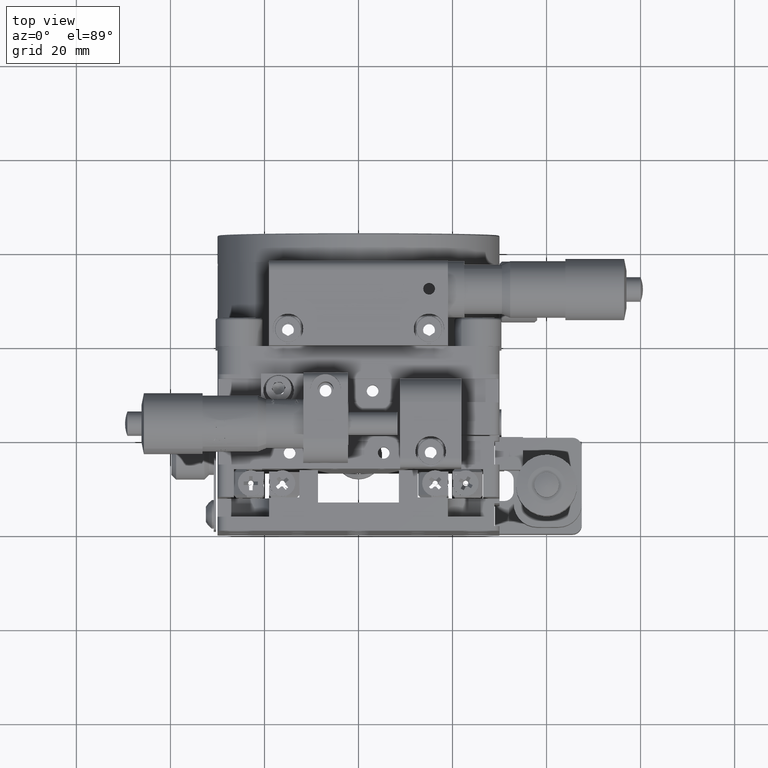
[diagram: clean part render]
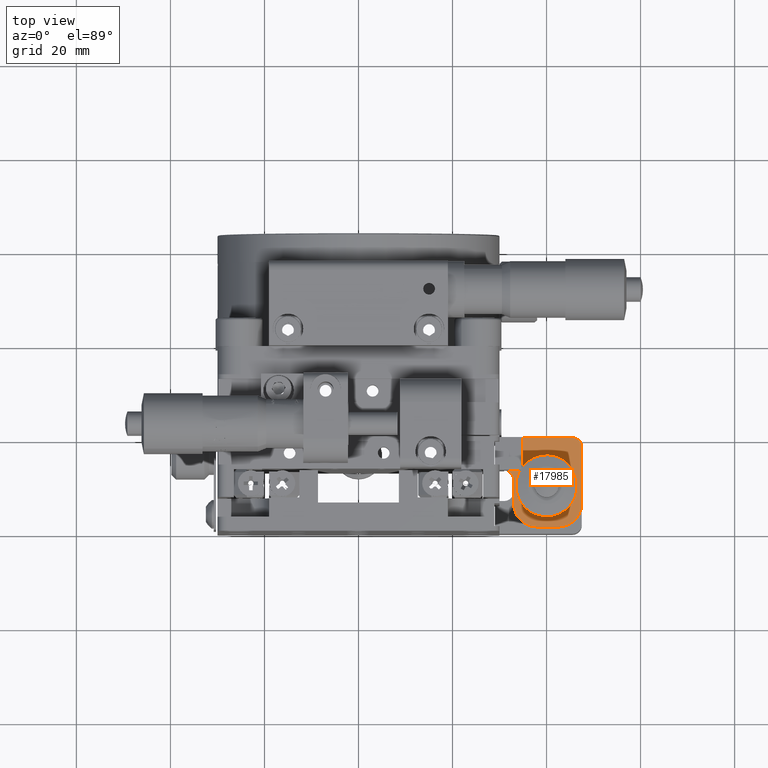
[diagram: same view with one face highlighted and labeled with its STEP entity id]
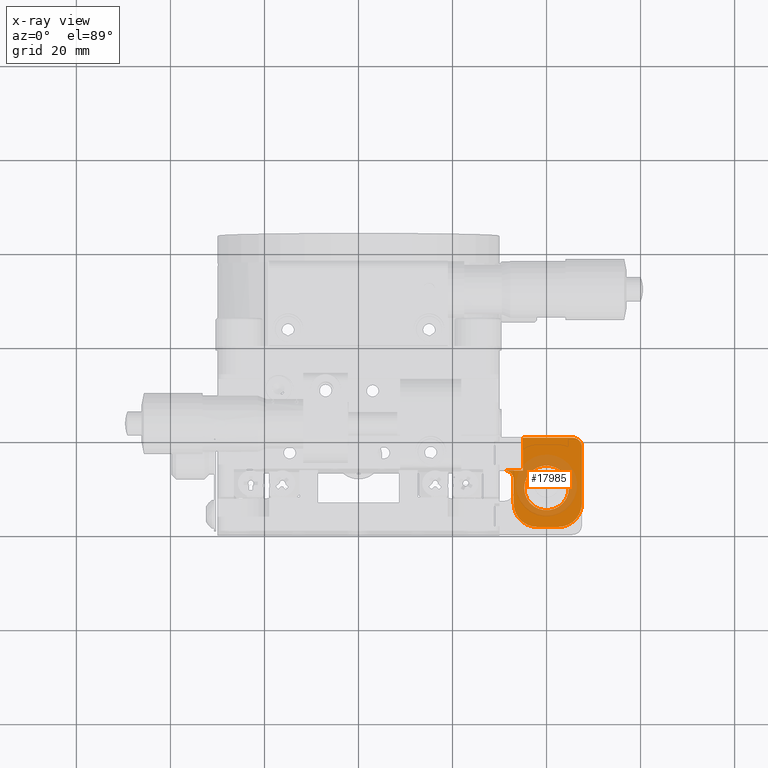
[diagram: x-ray of the same camera — body ghosted, the highlighted face saturated]
A machine part, top view. The second image highlights one B-rep face of the part: STEP entity #17985.
The next image is the same camera in x-ray: the body ghosted, the highlighted face saturated — about 35% of this face is hidden behind the body in this view.
In plain terms, the highlighted planar face has unit normal (0, 0, 1).
Its self-contained STEP definition (entity closure, byte-faithful):
#124 = ORIENTED_EDGE ( 'NONE', *, *, #25316, .F. ) ;
#888 = PLANE ( 'NONE',  #51459 ) ;
#1411 = VERTEX_POINT ( 'NONE', #12641 ) ;
#1744 = CIRCLE ( 'NONE', #44289, 2.000000000000001776 ) ;
#1980 = LINE ( 'NONE', #18748, #25293 ) ;
#4367 = DIRECTION ( 'NONE',  ( 1.561079974239602498E-32, 1.006527545072543828E-16, 1.000000000000000000 ) ) ;
#4821 = ORIENTED_EDGE ( 'NONE', *, *, #12018, .T. ) ;
#5720 = AXIS2_PLACEMENT_3D ( 'NONE', #56247, #34227, #51866 ) ;
#5794 = CARTESIAN_POINT ( 'NONE',  ( 45.50000000000000000, 20.10000000000000142, 12.09999999999999964 ) ) ;
#6373 = AXIS2_PLACEMENT_3D ( 'NONE', #47071, #25059, #52518 ) ;
#6887 = ORIENTED_EDGE ( 'NONE', *, *, #26799, .T. ) ;
#7323 = VECTOR ( 'NONE', #46497, 1000.000000000000000 ) ;
#7903 = CIRCLE ( 'NONE', #41213, 2.000000000000001776 ) ;
#9330 = ORIENTED_EDGE ( 'NONE', *, *, #19982, .T. ) ;
#10185 = VERTEX_POINT ( 'NONE', #52095 ) ;
#11428 = LINE ( 'NONE', #33694, #47832 ) ;
#12018 = EDGE_CURVE ( 'NONE', #41765, #41419, #31575, .T. ) ;
#12517 = VERTEX_POINT ( 'NONE', #35891 ) ;
#12641 = CARTESIAN_POINT ( 'NONE',  ( 44.74999999999999289, 9.399999999999995026, 12.10000000000000142 ) ) ;
#13897 = FACE_BOUND ( 'NONE', #13942, .T. ) ;
#13942 = EDGE_LOOP ( 'NONE', ( #43733, #124 ) ) ;
#15149 = CARTESIAN_POINT ( 'NONE',  ( 32.99999999999999289, 6.100000000000005862, 12.10000000000000142 ) ) ;
#15837 = CARTESIAN_POINT ( 'NONE',  ( 37.99999999999999289, 1.100000000000005418, 12.10000000000000320 ) ) ;
#16072 = VECTOR ( 'NONE', #40543, 1000.000000000000000 ) ;
#16205 = DIRECTION ( 'NONE',  ( -9.244463733058734832E-33, -1.006527545072543951E-16, -1.000000000000000000 ) ) ;
#16357 = ORIENTED_EDGE ( 'NONE', *, *, #26139, .F. ) ;
#16591 = VERTEX_POINT ( 'NONE', #5794 ) ;
#17272 = DIRECTION ( 'NONE',  ( 9.244463733058734832E-33, 1.006527545072543951E-16, 1.000000000000000000 ) ) ;
#17985 = ADVANCED_FACE ( 'NONE', ( #13897, #49478 ), #888, .T. ) ;
#18748 = CARTESIAN_POINT ( 'NONE',  ( 34.99999999999999289, 13.10000000000001741, 12.09999999999999964 ) ) ;
#19044 = ORIENTED_EDGE ( 'NONE', *, *, #30413, .T. ) ;
#19925 = EDGE_CURVE ( 'NONE', #39283, #34968, #37538, .T. ) ;
#19982 = EDGE_CURVE ( 'NONE', #32510, #38498, #30397, .T. ) ;
#20145 = EDGE_CURVE ( 'NONE', #41505, #16591, #1744, .T. ) ;
#21183 = CARTESIAN_POINT ( 'NONE',  ( 47.49999999999999289, 6.099999999999987210, 12.10000000000000142 ) ) ;
#21252 = CARTESIAN_POINT ( 'NONE',  ( 39.99999999999999289, 9.399999999999996803, 12.10000000000000142 ) ) ;
#21594 = CARTESIAN_POINT ( 'NONE',  ( 39.99999999999999289, 9.399999999999996803, 12.10000000000000142 ) ) ;
#21708 = DIRECTION ( 'NONE',  ( -1.000000000000000000, 2.775557561562891844E-16, -1.232595164407831220E-32 ) ) ;
#21970 = ORIENTED_EDGE ( 'NONE', *, *, #40723, .T. ) ;
#22380 = CARTESIAN_POINT ( 'NONE',  ( 47.49999999999999289, 6.099999999999987210, 12.10000000000000142 ) ) ;
#22816 = ORIENTED_EDGE ( 'NONE', *, *, #36937, .T. ) ;
#24091 = LINE ( 'NONE', #41768, #52101 ) ;
#25059 = DIRECTION ( 'NONE',  ( 9.244463733058734832E-33, 1.006527545072543951E-16, 1.000000000000000000 ) ) ;
#25293 = VECTOR ( 'NONE', #32362, 1000.000000000000000 ) ;
#25316 = EDGE_CURVE ( 'NONE', #1411, #12517, #35410, .T. ) ;
#25452 = CARTESIAN_POINT ( 'NONE',  ( 30.99999999999999289, 11.10000000000001918, 12.10000000000000142 ) ) ;
#26139 = EDGE_CURVE ( 'NONE', #34968, #10185, #1980, .T. ) ;
#26799 = EDGE_CURVE ( 'NONE', #16591, #10185, #31280, .T. ) ;
#27227 = CARTESIAN_POINT ( 'NONE',  ( 30.00000000000000000, 20.10000000000000853, 12.09999999999999964 ) ) ;
#28843 = CARTESIAN_POINT ( 'NONE',  ( 32.99999999999999289, 11.10000000000001918, 12.10000000000000142 ) ) ;
#30397 = CIRCLE ( 'NONE', #6373, 4.999999999999997335 ) ;
#30413 = EDGE_CURVE ( 'NONE', #39283, #46901, #7903, .T. ) ;
#30674 = CARTESIAN_POINT ( 'NONE',  ( 29.99999999999999289, 0.4000000000000062395, 12.10000000000000142 ) ) ;
#31280 = LINE ( 'NONE', #27227, #16072 ) ;
#31575 = CIRCLE ( 'NONE', #5720, 4.999999999999997335 ) ;
#32356 = EDGE_CURVE ( 'NONE', #12517, #1411, #39075, .T. ) ;
#32362 = DIRECTION ( 'NONE',  ( 3.820571703717597307E-16, 1.000000000000000000, -1.006527545072543951E-16 ) ) ;
#32510 = VERTEX_POINT ( 'NONE', #15149 ) ;
#33694 = CARTESIAN_POINT ( 'NONE',  ( 37.99999999999999289, 1.100000000000005418, 12.10000000000000320 ) ) ;
#33768 = ORIENTED_EDGE ( 'NONE', *, *, #19925, .F. ) ;
#33907 = ORIENTED_EDGE ( 'NONE', *, *, #20145, .T. ) ;
#34227 = DIRECTION ( 'NONE',  ( 9.244463733058734832E-33, 1.006527545072543951E-16, 1.000000000000000000 ) ) ;
#34968 = VERTEX_POINT ( 'NONE', #46592 ) ;
#35410 = CIRCLE ( 'NONE', #51090, 4.749999999999997335 ) ;
#35726 = DIRECTION ( 'NONE',  ( -1.000000000000000000, 3.652049423109069799E-16, 0.000000000000000000 ) ) ;
#35891 = CARTESIAN_POINT ( 'NONE',  ( 35.25000000000000000, 9.399999999999998579, 12.10000000000000142 ) ) ;
#36318 = CARTESIAN_POINT ( 'NONE',  ( 45.50000000000000000, 18.09999999999999787, 12.09999999999999964 ) ) ;
#36610 = DIRECTION ( 'NONE',  ( -1.000000000000000000, 0.000000000000000000, 0.000000000000000000 ) ) ;
#36937 = EDGE_CURVE ( 'NONE', #41419, #41505, #54210, .T. ) ;
#37256 = EDGE_LOOP ( 'NONE', ( #19044, #39789, #9330, #21970, #4821, #22816, #33907, #6887, #16357, #33768 ) ) ;
#37538 = LINE ( 'NONE', #45953, #7323 ) ;
#38327 = DIRECTION ( 'NONE',  ( 1.000000000000000000, -3.747002708109903324E-15, 3.615353439750074941E-31 ) ) ;
#38482 = DIRECTION ( 'NONE',  ( -1.000000000000000000, 0.000000000000000000, 0.000000000000000000 ) ) ;
#38498 = VERTEX_POINT ( 'NONE', #15837 ) ;
#39075 = CIRCLE ( 'NONE', #48353, 4.749999999999997335 ) ;
#39181 = DIRECTION ( 'NONE',  ( 9.244463733058734832E-33, 1.006527545072543951E-16, 1.000000000000000000 ) ) ;
#39283 = VERTEX_POINT ( 'NONE', #56989 ) ;
#39789 = ORIENTED_EDGE ( 'NONE', *, *, #41403, .T. ) ;
#39835 = DIRECTION ( 'NONE',  ( -1.000000000000000000, 3.652049423109069799E-16, 0.000000000000000000 ) ) ;
#40051 = DIRECTION ( 'NONE',  ( 2.775557561562891844E-16, 1.000000000000000000, -1.006527545072543951E-16 ) ) ;
#40543 = DIRECTION ( 'NONE',  ( -1.000000000000000000, 2.775557561562891844E-16, -1.232595164407831220E-32 ) ) ;
#40723 = EDGE_CURVE ( 'NONE', #38498, #41765, #11428, .T. ) ;
#40910 = DIRECTION ( 'NONE',  ( -2.775557561562891844E-16, -1.000000000000000000, 1.006527545072543951E-16 ) ) ;
#41213 = AXIS2_PLACEMENT_3D ( 'NONE', #25452, #16205, #38482 ) ;
#41240 = DIRECTION ( 'NONE',  ( 9.244463733058734832E-33, 1.006527545072543951E-16, 1.000000000000000000 ) ) ;
#41403 = EDGE_CURVE ( 'NONE', #46901, #32510, #24091, .T. ) ;
#41419 = VERTEX_POINT ( 'NONE', #21183 ) ;
#41505 = VERTEX_POINT ( 'NONE', #43212 ) ;
#41765 = VERTEX_POINT ( 'NONE', #56428 ) ;
#41768 = CARTESIAN_POINT ( 'NONE',  ( 32.99999999999999289, 6.100000000000004974, 12.10000000000000142 ) ) ;
#43212 = CARTESIAN_POINT ( 'NONE',  ( 47.49999999999999289, 18.09999999999999787, 12.09999999999999964 ) ) ;
#43733 = ORIENTED_EDGE ( 'NONE', *, *, #32356, .F. ) ;
#44289 = AXIS2_PLACEMENT_3D ( 'NONE', #36318, #41240, #36610 ) ;
#45874 = VECTOR ( 'NONE', #40051, 1000.000000000000000 ) ;
#45953 = CARTESIAN_POINT ( 'NONE',  ( 30.00000000000000000, 13.10000000000001918, 12.09999999999999964 ) ) ;
#46497 = DIRECTION ( 'NONE',  ( 1.000000000000000000, -2.775557561562891844E-16, 1.232595164407831220E-32 ) ) ;
#46592 = CARTESIAN_POINT ( 'NONE',  ( 34.99999999999999289, 13.10000000000001741, 12.09999999999999964 ) ) ;
#46901 = VERTEX_POINT ( 'NONE', #28843 ) ;
#47071 = CARTESIAN_POINT ( 'NONE',  ( 37.99999999999999289, 6.100000000000004974, 12.10000000000000142 ) ) ;
#47832 = VECTOR ( 'NONE', #38327, 1000.000000000000000 ) ;
#48353 = AXIS2_PLACEMENT_3D ( 'NONE', #21252, #39181, #35726 ) ;
#49478 = FACE_OUTER_BOUND ( 'NONE', #37256, .T. ) ;
#51090 = AXIS2_PLACEMENT_3D ( 'NONE', #21594, #17272, #39835 ) ;
#51459 = AXIS2_PLACEMENT_3D ( 'NONE', #30674, #4367, #21708 ) ;
#51866 = DIRECTION ( 'NONE',  ( -1.000000000000000000, 3.469446951953616161E-16, 0.000000000000000000 ) ) ;
#52095 = CARTESIAN_POINT ( 'NONE',  ( 34.99999999999999289, 20.10000000000000497, 12.09999999999999964 ) ) ;
#52101 = VECTOR ( 'NONE', #40910, 1000.000000000000000 ) ;
#52518 = DIRECTION ( 'NONE',  ( -1.000000000000000000, 3.469446951953616161E-16, 0.000000000000000000 ) ) ;
#54210 = LINE ( 'NONE', #22380, #45874 ) ;
#56247 = CARTESIAN_POINT ( 'NONE',  ( 42.49999999999999289, 6.099999999999988987, 12.10000000000000142 ) ) ;
#56428 = CARTESIAN_POINT ( 'NONE',  ( 42.49999999999998579, 1.099999999999989875, 12.10000000000000320 ) ) ;
#56989 = CARTESIAN_POINT ( 'NONE',  ( 30.99999999999999645, 13.10000000000001918, 12.09999999999999964 ) ) ;